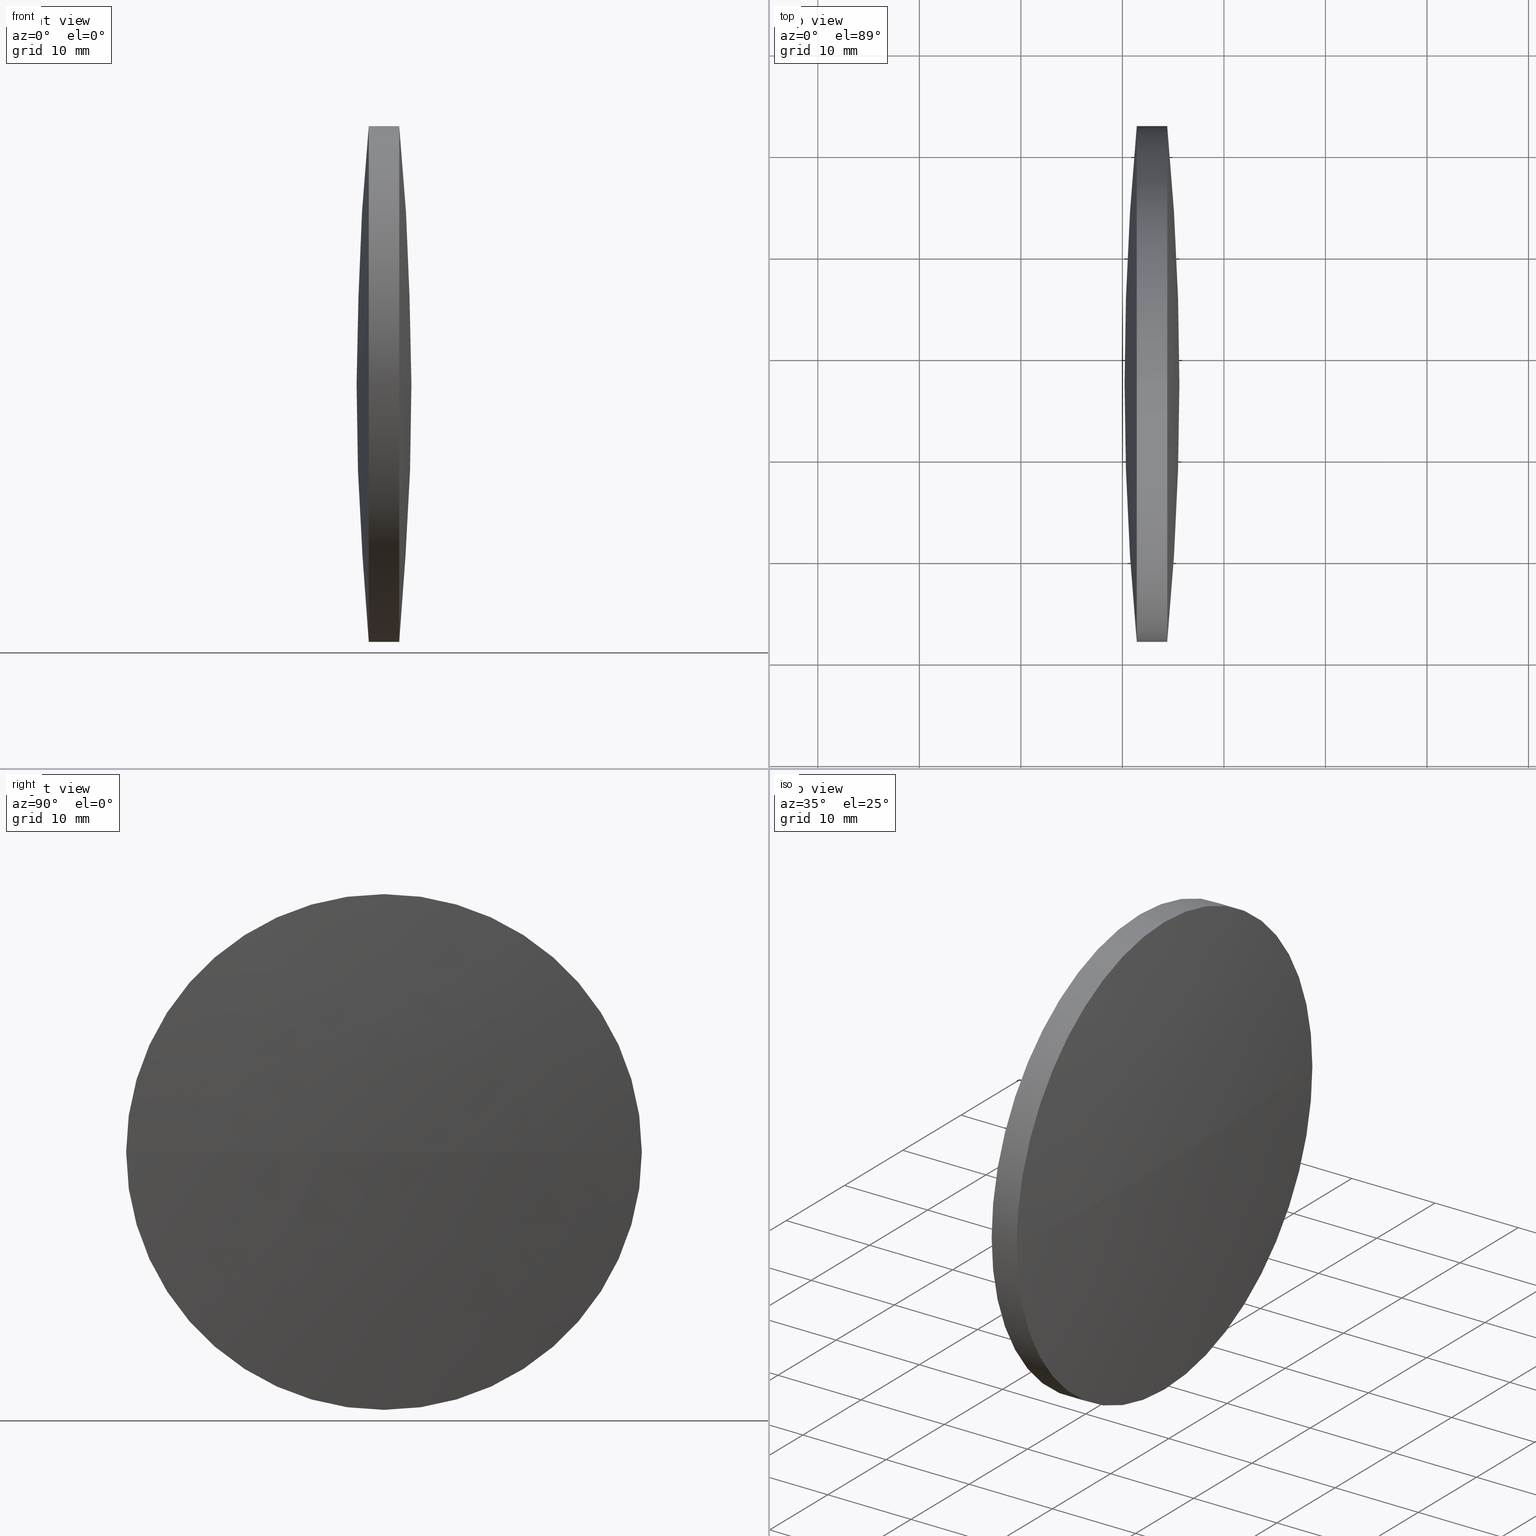
[diagram: canonical four-view strip — front | top / right | iso, engineering-drawing reading convention]
A machine part, canonical four-view strip (front | top / right | iso — engineering-drawing reading convention). The complete STEP part file that produces these views, byte-faithful:
ISO-10303-21;
HEADER;
FILE_DESCRIPTION (( 'STEP AP203' ),
    '1' );
FILE_NAME ('110109.STEP',
    '2019-07-08T08:20:42',
    ( '' ),
    ( '' ),
    'SwSTEP 2.0',
    'SolidWorks 2016',
    '' );
FILE_SCHEMA (( 'CONFIG_CONTROL_DESIGN' ));
ENDSEC;

DATA;
#1 = DIRECTION ( 'NONE',  ( 0.0000000000000000000, 0.0000000000000000000, 1.000000000000000000 ) ) ;
#2 = AXIS2_PLACEMENT_3D ( 'NONE', #316, #159, #51 ) ;
#3 = CC_DESIGN_PERSON_AND_ORGANIZATION_ASSIGNMENT ( #11, #197, ( #198 ) ) ;
#4 = COORDINATED_UNIVERSAL_TIME_OFFSET ( 8, 0, .AHEAD. ) ;
#5 = APPLICATION_CONTEXT ( 'configuration controlled 3d designs of mechanical parts and assemblies' ) ;
#6 = CIRCLE ( 'NONE', #234, 25.39999999999999100 ) ;
#7 =( NAMED_UNIT ( * ) SI_UNIT ( $, .STERADIAN. ) SOLID_ANGLE_UNIT ( ) );
#8 = PERSON_AND_ORGANIZATION_ROLE ( 'design_supplier' ) ;
#9 = ORIENTED_EDGE ( 'NONE', *, *, #267, .T. ) ;
#10 = APPROVAL_STATUS ( 'not_yet_approved' ) ;
#11 = PERSON_AND_ORGANIZATION ( #205, #287 ) ;
#12 = CC_DESIGN_DATE_AND_TIME_ASSIGNMENT ( #73, #121, ( #88 ) ) ;
#13 = APPROVAL_STATUS ( 'not_yet_approved' ) ;
#14 = CALENDAR_DATE ( 2019, 8, 7 ) ;
#15 = CARTESIAN_POINT ( 'NONE',  ( 171.4164086921822200, 97.23222604636956100, 0.0000000000000000000 ) ) ;
#16 = CIRCLE ( 'NONE', #227, 269.4236915733057500 ) ;
#17 = CARTESIAN_POINT ( 'NONE',  ( 439.6401316940594500, 97.23222604636900700, 0.0000000000000000000 ) ) ;
#18 = CARTESIAN_POINT ( 'NONE',  ( -93.80735659540891900, 97.23222604636887900, 0.0000000000000000000 ) ) ;
#19 = DATE_AND_TIME ( #182, #87 ) ;
#20 = ORIENTED_EDGE ( 'NONE', *, *, #184, .T. ) ;
#21 = CC_DESIGN_SECURITY_CLASSIFICATION ( #274, ( #158 ) ) ;
#22 = DIRECTION ( 'NONE',  ( 0.0000000000000000000, 1.000000000000000000, 0.0000000000000000000 ) ) ;
#23 = DIRECTION ( 'NONE',  ( -1.000000000000000000, -0.0000000000000000000, -0.0000000000000000000 ) ) ;
#24 = DIRECTION ( 'NONE',  ( -1.000000000000000000, -0.0000000000000000000, -0.0000000000000000000 ) ) ;
#25 = CIRCLE ( 'NONE', #260, 25.39999999999999100 ) ;
#26 = ORIENTED_EDGE ( 'NONE', *, *, #55, .F. ) ;
#27 = AXIS2_PLACEMENT_3D ( 'NONE', #215, #58, #1 ) ;
#28 =( LENGTH_UNIT ( ) NAMED_UNIT ( * ) SI_UNIT ( .MILLI., .METRE. ) );
#29 = DIRECTION ( 'NONE',  ( 0.0000000000000000000, 0.0000000000000000000, 1.000000000000000000 ) ) ;
#30 = PERSON_AND_ORGANIZATION ( #205, #287 ) ;
#31 = DIRECTION ( 'NONE',  ( 0.0000000000000000000, 0.0000000000000000000, 1.000000000000000000 ) ) ;
#32 = APPLICATION_CONTEXT ( 'configuration controlled 3d designs of mechanical parts and assemblies' ) ;
#33 = PERSON_AND_ORGANIZATION_ROLE ( 'creator' ) ;
#34 = EDGE_CURVE ( 'NONE', #54, #309, #16, .T. ) ;
#35 = VERTEX_POINT ( 'NONE', #177 ) ;
#36 = PERSON_AND_ORGANIZATION_ROLE ( 'creator' ) ;
#37 = PERSON_AND_ORGANIZATION_ROLE ( 'creator' ) ;
#38 = CARTESIAN_POINT ( 'NONE',  ( 439.6401316940594500, 97.23222604636900700, 0.0000000000000000000 ) ) ;
#39 = AXIS2_PLACEMENT_3D ( 'NONE', #106, #31, #264 ) ;
#40 = APPROVAL_DATE_TIME ( #105, #173 ) ;
#41 = DIRECTION ( 'NONE',  ( 0.0000000000000000000, 1.224646799147353200E-016, -1.000000000000000000 ) ) ;
#42 = VERTEX_POINT ( 'NONE', #65 ) ;
#43 = PRODUCT_DEFINITION_FORMATION_WITH_SPECIFIED_SOURCE ( '�κ�', '', #198, .NOT_KNOWN. ) ;
#44 = DATE_AND_TIME ( #224, #110 ) ;
#45 = CIRCLE ( 'NONE', #2, 269.4236915733053500 ) ;
#46 = EDGE_LOOP ( 'NONE', ( #243, #86, #220, #171 ) ) ;
#47 = AXIS2_PLACEMENT_3D ( 'NONE', #343, #101, #285 ) ;
#48 = LOCAL_TIME ( 16, 20, 42.00000000000000000, #174 ) ;
#49 = CARTESIAN_POINT ( 'NONE',  ( -93.80735659540891900, 97.23222604636887900, 0.0000000000000000000 ) ) ;
#50 = CARTESIAN_POINT ( 'NONE',  ( 170.2164401207537000, 97.23222604636902100, 0.0000000000000000000 ) ) ;
#51 = DIRECTION ( 'NONE',  ( 1.000000000000000000, 0.0000000000000000000, 0.0000000000000000000 ) ) ;
#52 = PERSON_AND_ORGANIZATION ( #205, #287 ) ;
#53 = CARTESIAN_POINT ( 'NONE',  ( 171.4164086921822200, 97.23222604636956100, 0.0000000000000000000 ) ) ;
#54 = VERTEX_POINT ( 'NONE', #145 ) ;
#55 = EDGE_CURVE ( 'NONE', #241, #309, #337, .T. ) ;
#56 = VERTEX_POINT ( 'NONE', #67 ) ;
#57 = CC_DESIGN_PERSON_AND_ORGANIZATION_ASSIGNMENT ( #304, #328, ( #43 ) ) ;
#58 = DIRECTION ( 'NONE',  ( -1.000000000000000000, -0.0000000000000000000, -0.0000000000000000000 ) ) ;
#59 = DATE_AND_TIME ( #62, #329 ) ;
#60 = SECURITY_CLASSIFICATION_LEVEL ( 'unclassified' ) ;
#61 = AXIS2_PLACEMENT_3D ( 'NONE', #162, #319, #238 ) ;
#62 = CALENDAR_DATE ( 2019, 8, 7 ) ;
#63 = ORIENTED_EDGE ( 'NONE', *, *, #277, .F. ) ;
#64 = APPROVAL_STATUS ( 'not_yet_approved' ) ;
#65 = CARTESIAN_POINT ( 'NONE',  ( 174.4163664064679400, 122.6322260463694200, 0.0000000000000000000 ) ) ;
#66 = PRODUCT_RELATED_PRODUCT_CATEGORY ( 'detail', '', ( #198 ) ) ;
#67 = CARTESIAN_POINT ( 'NONE',  ( 174.4163664064679400, 71.83222604636903000, -3.110602869834258700E-015 ) ) ;
#68 = AXIS2_PLACEMENT_3D ( 'NONE', #156, #233, #340 ) ;
#69 = APPLICATION_PROTOCOL_DEFINITION ( 'international standard', 'config_control_design', 1994, #5 ) ;
#70 = FACE_OUTER_BOUND ( 'NONE', #232, .T. ) ;
#71 = ORIENTED_EDGE ( 'NONE', *, *, #94, .F. ) ;
#72 = DIRECTION ( 'NONE',  ( 0.0000000000000000000, 1.224646799147353200E-016, -1.000000000000000000 ) ) ;
#73 = DATE_AND_TIME ( #134, #193 ) ;
#74 = AXIS2_PLACEMENT_3D ( 'NONE', #189, #29, #290 ) ;
#75 = CARTESIAN_POINT ( 'NONE',  ( 165.7441079421506900, 97.23222604636956100, 25.39999999999999100 ) ) ;
#76 = ADVANCED_FACE ( 'NONE', ( #199 ), #124, .T. ) ;
#77 = ADVANCED_FACE ( 'NONE', ( #99 ), #263, .T. ) ;
#78 = VECTOR ( 'NONE', #258, 1000.000000000000000 ) ;
#79 = ORIENTED_EDGE ( 'NONE', *, *, #239, .F. ) ;
#80 = EDGE_CURVE ( 'NONE', #225, #54, #303, .T. ) ;
#81 = PERSON_AND_ORGANIZATION ( #205, #287 ) ;
#82 = DIRECTION ( 'NONE',  ( -1.000000000000000000, -0.0000000000000000000, -0.0000000000000000000 ) ) ;
#83 = EDGE_CURVE ( 'NONE', #213, #241, #219, .T. ) ;
#84 = LOCAL_TIME ( 16, 20, 42.00000000000000000, #129 ) ;
#85 = CYLINDRICAL_SURFACE ( 'NONE', #61, 25.39999999999999100 ) ;
#86 = ORIENTED_EDGE ( 'NONE', *, *, #94, .T. ) ;
#87 = LOCAL_TIME ( 16, 20, 42.00000000000000000, #247 ) ;
#88 = PRODUCT_DEFINITION ( 'δ֪', '', #43, #167 ) ;
#89 = APPLICATION_PROTOCOL_DEFINITION ( 'international standard', 'config_control_design', 1994, #32 ) ;
#90 = SECURITY_CLASSIFICATION_LEVEL ( 'unclassified' ) ;
#91 = FACE_OUTER_BOUND ( 'NONE', #153, .T. ) ;
#92 = ORIENTED_EDGE ( 'NONE', *, *, #34, .T. ) ;
#93 = DIRECTION ( 'NONE',  ( 0.0000000000000000000, 1.000000000000000000, 0.0000000000000000000 ) ) ;
#94 = EDGE_CURVE ( 'NONE', #272, #56, #202, .T. ) ;
#95 = DIRECTION ( 'NONE',  ( -0.0000000000000000000, 0.0000000000000000000, -1.000000000000000000 ) ) ;
#96 = MANIFOLD_SOLID_BREP ( '��ת1', #163 ) ;
#97 = ADVANCED_FACE ( 'NONE', ( #191 ), #333, .T. ) ;
#98 = CALENDAR_DATE ( 2019, 8, 7 ) ;
#99 = FACE_OUTER_BOUND ( 'NONE', #317, .T. ) ;
#100 = DIRECTION ( 'NONE',  ( 1.000000000000000000, 0.0000000000000000000, 0.0000000000000000000 ) ) ;
#101 = DIRECTION ( 'NONE',  ( -1.000000000000000000, -0.0000000000000000000, -0.0000000000000000000 ) ) ;
#102 = AXIS2_PLACEMENT_3D ( 'NONE', #294, #82, #192 ) ;
#103 = ORIENTED_EDGE ( 'NONE', *, *, #80, .F. ) ;
#104 = CARTESIAN_POINT ( 'NONE',  ( 174.4163664064679400, 97.23222604636956100, 0.0000000000000000000 ) ) ;
#105 = DATE_AND_TIME ( #98, #48 ) ;
#106 = CARTESIAN_POINT ( 'NONE',  ( 0.0000000000000000000, 0.0000000000000000000, 0.0000000000000000000 ) ) ;
#107 = CC_DESIGN_PERSON_AND_ORGANIZATION_ASSIGNMENT ( #52, #218, ( #325 ) ) ;
#108 = APPLICATION_CONTEXT ( 'configuration controlled 3d designs of mechanical parts and assemblies' ) ;
#109 = AXIS2_PLACEMENT_3D ( 'NONE', #17, #95, #252 ) ;
#110 = LOCAL_TIME ( 16, 20, 42.00000000000000000, #116 ) ;
#111 = DATE_AND_TIME ( #250, #326 ) ;
#112 = ORIENTED_EDGE ( 'NONE', *, *, #172, .T. ) ;
#113 = APPROVAL_ROLE ( '' ) ;
#114 = APPROVAL_STATUS ( 'not_yet_approved' ) ;
#115 = PERSON_AND_ORGANIZATION ( #205, #287 ) ;
#116 = COORDINATED_UNIVERSAL_TIME_OFFSET ( 8, 0, .AHEAD. ) ;
#117 = CALENDAR_DATE ( 2019, 8, 7 ) ;
#118 = DATE_TIME_ROLE ( 'classification_date' ) ;
#119 = EDGE_LOOP ( 'NONE', ( #71, #9, #288, #79 ) ) ;
#120 = AXIS2_PLACEMENT_3D ( 'NONE', #208, #203, #253 ) ;
#121 = DATE_TIME_ROLE ( 'creation_date' ) ;
#122 = PERSON_AND_ORGANIZATION ( #205, #287 ) ;
#123 = APPROVAL_PERSON_ORGANIZATION ( #279, #168, #270 ) ;
#124 = SPHERICAL_SURFACE ( 'NONE', #130, 269.4236915733053500 ) ;
#125 = DIRECTION ( 'NONE',  ( 0.0000000000000000000, 1.000000000000000000, 1.224646799147353500E-016 ) ) ;
#126 = CC_DESIGN_APPROVAL ( #173, ( #274 ) ) ;
#127 = CARTESIAN_POINT ( 'NONE',  ( 174.4163664064679400, 97.23222604636956100, 25.39999999999999100 ) ) ;
#128 = ADVANCED_FACE ( 'NONE', ( #91 ), #152, .T. ) ;
#129 = COORDINATED_UNIVERSAL_TIME_OFFSET ( 8, 0, .AHEAD. ) ;
#130 = AXIS2_PLACEMENT_3D ( 'NONE', #18, #181, #339 ) ;
#131 = DIRECTION ( 'NONE',  ( -0.0000000000000000000, 0.0000000000000000000, -1.000000000000000000 ) ) ;
#132 = CARTESIAN_POINT ( 'NONE',  ( 175.6163349778964600, 97.23222604636889300, 0.0000000000000000000 ) ) ;
#133 = CARTESIAN_POINT ( 'NONE',  ( 171.4164086921822200, 97.23222604636956100, -25.39999999999999100 ) ) ;
#134 = CALENDAR_DATE ( 2019, 8, 7 ) ;
#135 = COORDINATED_UNIVERSAL_TIME_OFFSET ( 8, 0, .AHEAD. ) ;
#136 = MECHANICAL_CONTEXT ( 'NONE', #108, 'mechanical' ) ;
#137 = FACE_OUTER_BOUND ( 'NONE', #195, .T. ) ;
#138 = CC_DESIGN_APPROVAL ( #168, ( #201 ) ) ;
#139 = APPROVAL_ROLE ( '' ) ;
#140 =( GEOMETRIC_REPRESENTATION_CONTEXT ( 3 ) GLOBAL_UNCERTAINTY_ASSIGNED_CONTEXT ( ( #151 ) ) GLOBAL_UNIT_ASSIGNED_CONTEXT ( ( #28, #165, #7 ) ) REPRESENTATION_CONTEXT ( 'NONE', 'WORKASPACE' ) );
#141 = PERSON_AND_ORGANIZATION_ROLE ( 'creator' ) ;
#142 = PERSON_AND_ORGANIZATION ( #205, #287 ) ;
#143 = ORIENTED_EDGE ( 'NONE', *, *, #34, .F. ) ;
#144 = PERSON_AND_ORGANIZATION_ROLE ( 'classification_officer' ) ;
#145 = CARTESIAN_POINT ( 'NONE',  ( 171.4164086921822200, 71.83222604636910100, -3.110602869834266600E-015 ) ) ;
#146 = PERSON_AND_ORGANIZATION ( #205, #287 ) ;
#147 = PRODUCT_RELATED_PRODUCT_CATEGORY ( 'detail', '', ( #332 ) ) ;
#148 = AXIS2_PLACEMENT_3D ( 'NONE', #15, #154, #206 ) ;
#149 = PRODUCT_DEFINITION_SHAPE ( 'NONE', 'NONE',  #88 ) ;
#150 = APPROVAL_STATUS ( 'not_yet_approved' ) ;
#151 = UNCERTAINTY_MEASURE_WITH_UNIT (LENGTH_MEASURE( 1.000000000000000100E-005 ), #28, 'distance_accuracy_value', 'NONE');
#152 = SPHERICAL_SURFACE ( 'NONE', #161, 269.4236915733057500 ) ;
#153 = EDGE_LOOP ( 'NONE', ( #143, #112, #327, #330 ) ) ;
#154 = DIRECTION ( 'NONE',  ( -1.000000000000000000, -0.0000000000000000000, -0.0000000000000000000 ) ) ;
#155 = CIRCLE ( 'NONE', #289, 25.39999999999999100 ) ;
#156 = CARTESIAN_POINT ( 'NONE',  ( 174.4163664064679400, 97.23222604636956100, 0.0000000000000000000 ) ) ;
#157 = DIRECTION ( 'NONE',  ( 0.0000000000000000000, 0.0000000000000000000, 1.000000000000000000 ) ) ;
#158 = PRODUCT_DEFINITION_FORMATION_WITH_SPECIFIED_SOURCE ( '�κ�', '', #332, .NOT_KNOWN. ) ;
#159 = DIRECTION ( 'NONE',  ( -0.0000000000000000000, 0.0000000000000000000, 1.000000000000000000 ) ) ;
#160 = APPROVAL_PERSON_ORGANIZATION ( #335, #266, #295 ) ;
#161 = AXIS2_PLACEMENT_3D ( 'NONE', #188, #131, #22 ) ;
#162 = CARTESIAN_POINT ( 'NONE',  ( 165.7441079421506900, 97.23222604636956100, 0.0000000000000000000 ) ) ;
#163 = CLOSED_SHELL ( 'NONE', ( #318, #97, #77, #128, #76, #282 ) ) ;
#164 = CC_DESIGN_APPROVAL ( #217, ( #325 ) ) ;
#165 =( NAMED_UNIT ( * ) PLANE_ANGLE_UNIT ( ) SI_UNIT ( $, .RADIAN. ) );
#166 = CALENDAR_DATE ( 2019, 8, 7 ) ;
#167 = DESIGN_CONTEXT ( 'detailed design', #276, 'design' ) ;
#168 = APPROVAL ( #196, 'δָ��' ) ;
#169 = APPROVAL_DATE_TIME ( #236, #217 ) ;
#170 = PERSON_AND_ORGANIZATION ( #205, #287 ) ;
#171 = ORIENTED_EDGE ( 'NONE', *, *, #298, .F. ) ;
#172 = EDGE_CURVE ( 'NONE', #54, #213, #6, .T. ) ;
#173 = APPROVAL ( #64, 'δָ��' ) ;
#174 = COORDINATED_UNIVERSAL_TIME_OFFSET ( 8, 0, .AHEAD. ) ;
#175 = APPROVAL_DATE_TIME ( #322, #281 ) ;
#176 = DATE_TIME_ROLE ( 'creation_date' ) ;
#177 = CARTESIAN_POINT ( 'NONE',  ( 174.4163664064679400, 97.23222604636956100, -25.39999999999999100 ) ) ;
#178 = CIRCLE ( 'NONE', #47, 25.39999999999999100 ) ;
#179 = CC_DESIGN_APPROVAL ( #281, ( #88 ) ) ;
#180 = ORIENTED_EDGE ( 'NONE', *, *, #172, .F. ) ;
#181 = DIRECTION ( 'NONE',  ( -0.0000000000000000000, 0.0000000000000000000, -1.000000000000000000 ) ) ;
#182 = CALENDAR_DATE ( 2019, 8, 7 ) ;
#183 = CC_DESIGN_DATE_AND_TIME_ASSIGNMENT ( #44, #221, ( #325 ) ) ;
#184 = EDGE_CURVE ( 'NONE', #251, #42, #155, .T. ) ;
#185 = DATE_AND_TIME ( #14, #84 ) ;
#186 = ORIENTED_EDGE ( 'NONE', *, *, #222, .T. ) ;
#187 = CARTESIAN_POINT ( 'NONE',  ( 171.4164086921822200, 97.23222604636956100, 0.0000000000000000000 ) ) ;
#188 = CARTESIAN_POINT ( 'NONE',  ( 439.6401316940594500, 97.23222604636900700, 0.0000000000000000000 ) ) ;
#189 = CARTESIAN_POINT ( 'NONE',  ( 0.0000000000000000000, 0.0000000000000000000, 0.0000000000000000000 ) ) ;
#190 = EDGE_CURVE ( 'NONE', #35, #56, #228, .T. ) ;
#191 = FACE_OUTER_BOUND ( 'NONE', #46, .T. ) ;
#192 = DIRECTION ( 'NONE',  ( 0.0000000000000000000, 0.0000000000000000000, 1.000000000000000000 ) ) ;
#193 = LOCAL_TIME ( 16, 20, 42.00000000000000000, #200 ) ;
#194 = COORDINATED_UNIVERSAL_TIME_OFFSET ( 8, 0, .AHEAD. ) ;
#195 = EDGE_LOOP ( 'NONE', ( #229, #306, #248, #237, #63, #20 ) ) ;
#196 = APPROVAL_STATUS ( 'not_yet_approved' ) ;
#197 = PERSON_AND_ORGANIZATION_ROLE ( 'design_owner' ) ;
#198 = PRODUCT ( '110109', '110109', '', ( #297 ) ) ;
#199 = FACE_OUTER_BOUND ( 'NONE', #119, .T. ) ;
#200 = COORDINATED_UNIVERSAL_TIME_OFFSET ( 8, 0, .AHEAD. ) ;
#201 = PRODUCT_DEFINITION ( 'δ֪', '', #158, #311 ) ;
#202 = CIRCLE ( 'NONE', #255, 269.4236915733053500 ) ;
#203 = DIRECTION ( 'NONE',  ( -1.000000000000000000, -0.0000000000000000000, -0.0000000000000000000 ) ) ;
#204 = ORIENTED_EDGE ( 'NONE', *, *, #273, .F. ) ;
#205 = PERSON ( 'δָ��', 'δָ��', 'δָ��', ('δָ��'), ('δָ��'), ('δָ��') ) ;
#206 = DIRECTION ( 'NONE',  ( 0.0000000000000000000, 0.0000000000000000000, 1.000000000000000000 ) ) ;
#207 = CC_DESIGN_SECURITY_CLASSIFICATION ( #325, ( #43 ) ) ;
#208 = CARTESIAN_POINT ( 'NONE',  ( 171.4164086921822200, 97.23222604636956100, 0.0000000000000000000 ) ) ;
#209 = CARTESIAN_POINT ( 'NONE',  ( 165.7441079421506900, 97.23222604636956100, -25.39999999999999100 ) ) ;
#210 = VECTOR ( 'NONE', #24, 1000.000000000000000 ) ;
#211 = DIRECTION ( 'NONE',  ( 0.0000000000000000000, 0.0000000000000000000, 1.000000000000000000 ) ) ;
#212 = LOCAL_TIME ( 16, 20, 42.00000000000000000, #271 ) ;
#213 = VERTEX_POINT ( 'NONE', #230 ) ;
#214 = CC_DESIGN_PERSON_AND_ORGANIZATION_ASSIGNMENT ( #142, #323, ( #332 ) ) ;
#215 = CARTESIAN_POINT ( 'NONE',  ( 174.4163664064679400, 97.23222604636956100, 0.0000000000000000000 ) ) ;
#216 = APPROVAL_DATE_TIME ( #259, #168 ) ;
#217 = APPROVAL ( #150, 'δָ��' ) ;
#218 = PERSON_AND_ORGANIZATION_ROLE ( 'classification_officer' ) ;
#219 = CIRCLE ( 'NONE', #120, 25.39999999999999100 ) ;
#220 = ORIENTED_EDGE ( 'NONE', *, *, #190, .F. ) ;
#221 = DATE_TIME_ROLE ( 'classification_date' ) ;
#222 = EDGE_CURVE ( 'NONE', #241, #225, #25, .T. ) ;
#223 = DIRECTION ( 'NONE',  ( 0.0000000000000000000, 1.000000000000000000, 1.224646799147353500E-016 ) ) ;
#224 = CALENDAR_DATE ( 2019, 8, 7 ) ;
#225 = VERTEX_POINT ( 'NONE', #133 ) ;
#226 = CC_DESIGN_APPROVAL ( #257, ( #158 ) ) ;
#227 = AXIS2_PLACEMENT_3D ( 'NONE', #38, #41, #223 ) ;
#228 = CIRCLE ( 'NONE', #68, 25.39999999999999100 ) ;
#229 = ORIENTED_EDGE ( 'NONE', *, *, #298, .T. ) ;
#230 = CARTESIAN_POINT ( 'NONE',  ( 171.4164086921822200, 97.23222604636956100, 25.39999999999999100 ) ) ;
#231 = APPROVAL_PERSON_ORGANIZATION ( #30, #281, #113 ) ;
#232 = EDGE_LOOP ( 'NONE', ( #204, #292, #296, #345, #180, #103 ) ) ;
#233 = DIRECTION ( 'NONE',  ( -1.000000000000000000, -0.0000000000000000000, -0.0000000000000000000 ) ) ;
#234 = AXIS2_PLACEMENT_3D ( 'NONE', #53, #235, #157 ) ;
#235 = DIRECTION ( 'NONE',  ( -1.000000000000000000, -0.0000000000000000000, -0.0000000000000000000 ) ) ;
#236 = DATE_AND_TIME ( #314, #275 ) ;
#237 = ORIENTED_EDGE ( 'NONE', *, *, #83, .F. ) ;
#238 = DIRECTION ( 'NONE',  ( 0.0000000000000000000, 0.0000000000000000000, 1.000000000000000000 ) ) ;
#239 = EDGE_CURVE ( 'NONE', #56, #251, #178, .T. ) ;
#240 = LOCAL_TIME ( 16, 20, 42.00000000000000000, #308 ) ;
#241 = VERTEX_POINT ( 'NONE', #313 ) ;
#242 = LINE ( 'NONE', #209, #210 ) ;
#243 = ORIENTED_EDGE ( 'NONE', *, *, #267, .F. ) ;
#244 = AXIS2_PLACEMENT_3D ( 'NONE', #334, #278, #100 ) ;
#245 = ADVANCED_BREP_SHAPE_REPRESENTATION ( '110109', ( #96, #74 ), #140 ) ;
#246 = CC_DESIGN_DATE_AND_TIME_ASSIGNMENT ( #59, #176, ( #201 ) ) ;
#247 = COORDINATED_UNIVERSAL_TIME_OFFSET ( 8, 0, .AHEAD. ) ;
#248 = ORIENTED_EDGE ( 'NONE', *, *, #222, .F. ) ;
#249 = CC_DESIGN_PERSON_AND_ORGANIZATION_ASSIGNMENT ( #321, #144, ( #274 ) ) ;
#250 = CALENDAR_DATE ( 2019, 8, 7 ) ;
#251 = VERTEX_POINT ( 'NONE', #127 ) ;
#252 = DIRECTION ( 'NONE',  ( 0.0000000000000000000, 1.000000000000000000, 0.0000000000000000000 ) ) ;
#253 = DIRECTION ( 'NONE',  ( 0.0000000000000000000, 0.0000000000000000000, 1.000000000000000000 ) ) ;
#254 = CARTESIAN_POINT ( 'NONE',  ( -93.80735659540891900, 97.23222604636887900, 0.0000000000000000000 ) ) ;
#255 = AXIS2_PLACEMENT_3D ( 'NONE', #254, #72, #125 ) ;
#256 = PERSON_AND_ORGANIZATION ( #205, #287 ) ;
#257 = APPROVAL ( #114, 'δָ��' ) ;
#258 = DIRECTION ( 'NONE',  ( -1.000000000000000000, -0.0000000000000000000, -0.0000000000000000000 ) ) ;
#259 = DATE_AND_TIME ( #117, #212 ) ;
#260 = AXIS2_PLACEMENT_3D ( 'NONE', #187, #23, #211 ) ;
#261 = APPROVAL_DATE_TIME ( #185, #266 ) ;
#262 = APPROVAL_DATE_TIME ( #111, #257 ) ;
#263 = SPHERICAL_SURFACE ( 'NONE', #109, 269.4236915733057500 ) ;
#264 = DIRECTION ( 'NONE',  ( 1.000000000000000000, 0.0000000000000000000, 0.0000000000000000000 ) ) ;
#265 = PERSON_AND_ORGANIZATION ( #205, #287 ) ;
#266 = APPROVAL ( #13, 'δָ��' ) ;
#267 = EDGE_CURVE ( 'NONE', #272, #42, #45, .T. ) ;
#268 = APPLICATION_PROTOCOL_DEFINITION ( 'international standard', 'config_control_design', 1994, #276 ) ;
#269 = APPROVAL_ROLE ( '' ) ;
#270 = APPROVAL_ROLE ( '' ) ;
#271 = COORDINATED_UNIVERSAL_TIME_OFFSET ( 8, 0, .AHEAD. ) ;
#272 = VERTEX_POINT ( 'NONE', #132 ) ;
#273 = EDGE_CURVE ( 'NONE', #35, #225, #242, .T. ) ;
#274 = SECURITY_CLASSIFICATION ( '', '', #90 ) ;
#275 = LOCAL_TIME ( 16, 20, 42.00000000000000000, #4 ) ;
#276 = APPLICATION_CONTEXT ( 'configuration controlled 3d designs of mechanical parts and assemblies' ) ;
#277 = EDGE_CURVE ( 'NONE', #251, #213, #283, .T. ) ;
#278 = DIRECTION ( 'NONE',  ( -0.0000000000000000000, 0.0000000000000000000, 1.000000000000000000 ) ) ;
#279 = PERSON_AND_ORGANIZATION ( #205, #287 ) ;
#280 = ORIENTED_EDGE ( 'NONE', *, *, #80, .T. ) ;
#281 = APPROVAL ( #10, 'δָ��' ) ;
#282 = ADVANCED_FACE ( 'NONE', ( #70 ), #85, .T. ) ;
#283 = LINE ( 'NONE', #75, #78 ) ;
#284 = CC_DESIGN_PERSON_AND_ORGANIZATION_ASSIGNMENT ( #170, #36, ( #158 ) ) ;
#285 = DIRECTION ( 'NONE',  ( 0.0000000000000000000, 0.0000000000000000000, 1.000000000000000000 ) ) ;
#286 = SHAPE_DEFINITION_REPRESENTATION ( #149, #245 ) ;
#287 = ORGANIZATION ( 'δָ��', 'δָ��', '' ) ;
#288 = ORIENTED_EDGE ( 'NONE', *, *, #184, .F. ) ;
#289 = AXIS2_PLACEMENT_3D ( 'NONE', #104, #342, #312 ) ;
#290 = DIRECTION ( 'NONE',  ( 1.000000000000000000, 0.0000000000000000000, 0.0000000000000000000 ) ) ;
#291 = CC_DESIGN_PERSON_AND_ORGANIZATION_ASSIGNMENT ( #265, #37, ( #88 ) ) ;
#292 = ORIENTED_EDGE ( 'NONE', *, *, #190, .T. ) ;
#293 = APPLICATION_PROTOCOL_DEFINITION ( 'international standard', 'config_control_design', 1994, #108 ) ;
#294 = CARTESIAN_POINT ( 'NONE',  ( 165.7441079421506900, 97.23222604636956100, 0.0000000000000000000 ) ) ;
#295 = APPROVAL_ROLE ( '' ) ;
#296 = ORIENTED_EDGE ( 'NONE', *, *, #239, .T. ) ;
#297 = MECHANICAL_CONTEXT ( 'NONE', #5, 'mechanical' ) ;
#298 = EDGE_CURVE ( 'NONE', #42, #35, #344, .T. ) ;
#299 = APPROVAL_ROLE ( '' ) ;
#300 = CC_DESIGN_PERSON_AND_ORGANIZATION_ASSIGNMENT ( #146, #141, ( #201 ) ) ;
#301 = PRODUCT_DEFINITION_SHAPE ( 'NONE', 'NONE',  #201 ) ;
#302 = APPROVAL_PERSON_ORGANIZATION ( #115, #173, #139 ) ;
#303 = CIRCLE ( 'NONE', #148, 25.39999999999999100 ) ;
#304 = PERSON_AND_ORGANIZATION ( #205, #287 ) ;
#305 = CYLINDRICAL_SURFACE ( 'NONE', #102, 25.39999999999999100 ) ;
#306 = ORIENTED_EDGE ( 'NONE', *, *, #273, .T. ) ;
#307 = DIRECTION ( 'NONE',  ( -0.0000000000000000000, 0.0000000000000000000, -1.000000000000000000 ) ) ;
#308 = COORDINATED_UNIVERSAL_TIME_OFFSET ( 8, 0, .AHEAD. ) ;
#309 = VERTEX_POINT ( 'NONE', #50 ) ;
#310 = CC_DESIGN_PERSON_AND_ORGANIZATION_ASSIGNMENT ( #122, #33, ( #43 ) ) ;
#311 = DESIGN_CONTEXT ( 'detailed design', #32, 'design' ) ;
#312 = DIRECTION ( 'NONE',  ( 0.0000000000000000000, 0.0000000000000000000, 1.000000000000000000 ) ) ;
#313 = CARTESIAN_POINT ( 'NONE',  ( 171.4164086921822200, 122.6322260463694800, 0.0000000000000000000 ) ) ;
#314 = CALENDAR_DATE ( 2019, 8, 7 ) ;
#315 = PERSON_AND_ORGANIZATION ( #205, #287 ) ;
#316 = CARTESIAN_POINT ( 'NONE',  ( -93.80735659540891900, 97.23222604636887900, 0.0000000000000000000 ) ) ;
#317 = EDGE_LOOP ( 'NONE', ( #186, #280, #92, #26 ) ) ;
#318 = ADVANCED_FACE ( 'NONE', ( #137 ), #305, .T. ) ;
#319 = DIRECTION ( 'NONE',  ( -1.000000000000000000, -0.0000000000000000000, -0.0000000000000000000 ) ) ;
#320 = CC_DESIGN_PERSON_AND_ORGANIZATION_ASSIGNMENT ( #256, #8, ( #158 ) ) ;
#321 = PERSON_AND_ORGANIZATION ( #205, #287 ) ;
#322 = DATE_AND_TIME ( #166, #240 ) ;
#323 = PERSON_AND_ORGANIZATION_ROLE ( 'design_owner' ) ;
#324 = APPROVAL_PERSON_ORGANIZATION ( #81, #217, #269 ) ;
#325 = SECURITY_CLASSIFICATION ( '', '', #60 ) ;
#326 = LOCAL_TIME ( 16, 20, 42.00000000000000000, #194 ) ;
#327 = ORIENTED_EDGE ( 'NONE', *, *, #83, .T. ) ;
#328 = PERSON_AND_ORGANIZATION_ROLE ( 'design_supplier' ) ;
#329 = LOCAL_TIME ( 16, 20, 42.00000000000000000, #135 ) ;
#330 = ORIENTED_EDGE ( 'NONE', *, *, #55, .T. ) ;
#331 = AXIS2_PLACEMENT_3D ( 'NONE', #49, #307, #93 ) ;
#332 = PRODUCT ( '110109', '110109', '', ( #136 ) ) ;
#333 = SPHERICAL_SURFACE ( 'NONE', #331, 269.4236915733053500 ) ;
#334 = CARTESIAN_POINT ( 'NONE',  ( 439.6401316940594500, 97.23222604636900700, 0.0000000000000000000 ) ) ;
#335 = PERSON_AND_ORGANIZATION ( #205, #287 ) ;
#336 = APPROVAL_PERSON_ORGANIZATION ( #315, #257, #299 ) ;
#337 = CIRCLE ( 'NONE', #244, 269.4236915733056900 ) ;
#338 = CC_DESIGN_APPROVAL ( #266, ( #43 ) ) ;
#339 = DIRECTION ( 'NONE',  ( 0.0000000000000000000, 1.000000000000000000, 0.0000000000000000000 ) ) ;
#340 = DIRECTION ( 'NONE',  ( 0.0000000000000000000, 0.0000000000000000000, 1.000000000000000000 ) ) ;
#341 = CC_DESIGN_DATE_AND_TIME_ASSIGNMENT ( #19, #118, ( #274 ) ) ;
#342 = DIRECTION ( 'NONE',  ( -1.000000000000000000, -0.0000000000000000000, -0.0000000000000000000 ) ) ;
#343 = CARTESIAN_POINT ( 'NONE',  ( 174.4163664064679400, 97.23222604636956100, 0.0000000000000000000 ) ) ;
#344 = CIRCLE ( 'NONE', #27, 25.39999999999999100 ) ;
#345 = ORIENTED_EDGE ( 'NONE', *, *, #277, .T. ) ;
ENDSEC;
END-ISO-10303-21;
